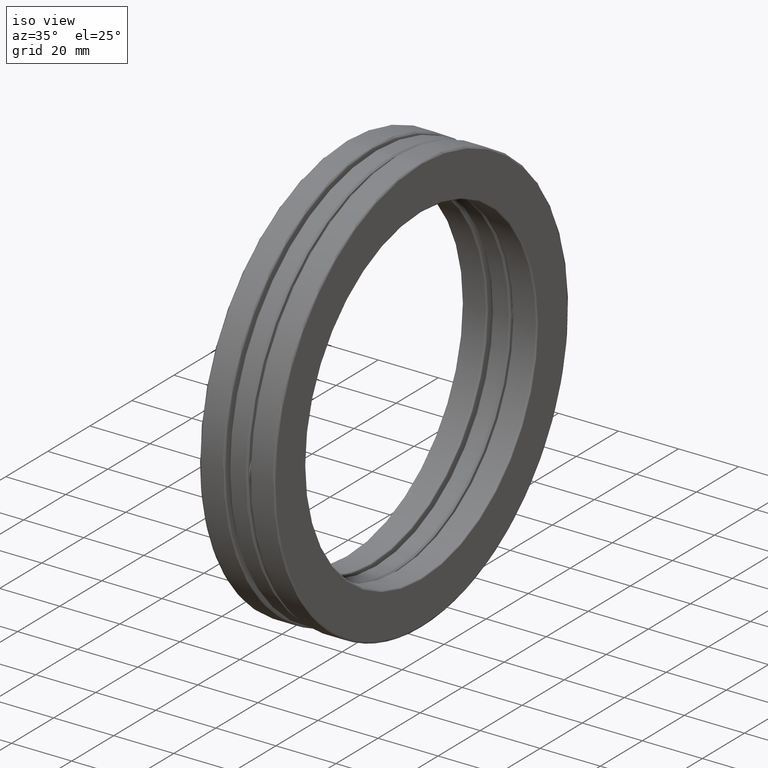
[diagram: clean part render]
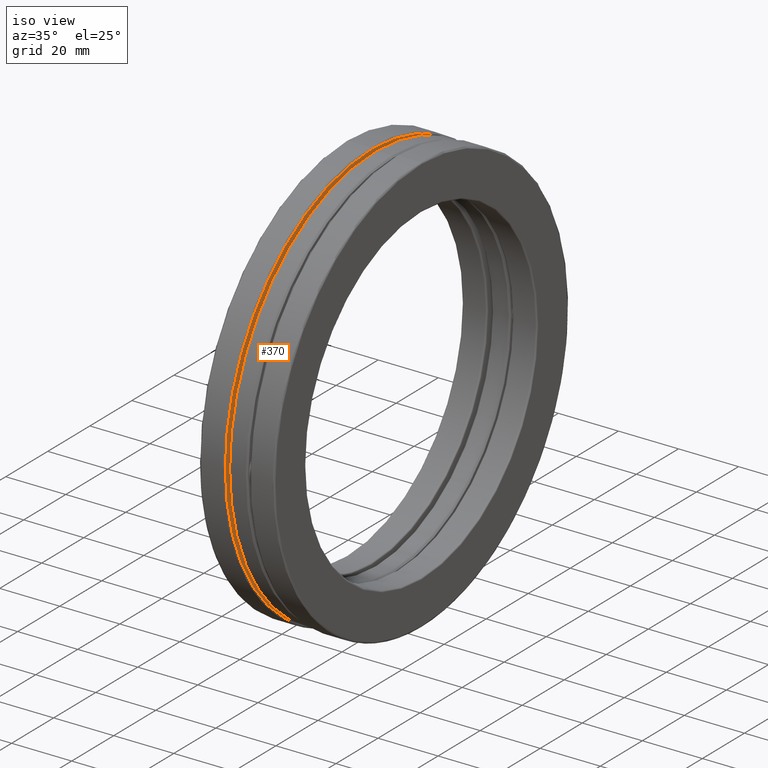
[diagram: same view with one face highlighted and labeled with its STEP entity id]
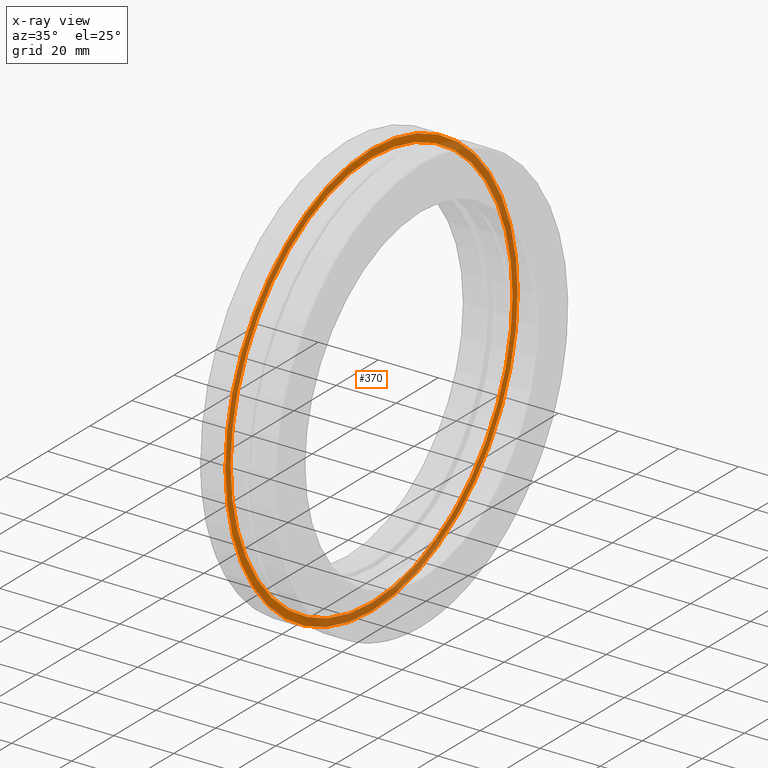
[diagram: x-ray of the same camera — body ghosted, the highlighted face saturated]
A machine part, iso view. The second image highlights one B-rep face of the part: STEP entity #370.
The next image is the same camera in x-ray: the body ghosted, the highlighted face saturated — about 31% of this face is hidden behind the body in this view.
In plain terms, the highlighted planar face has unit normal (1, 0, 0).
Its self-contained STEP definition (entity closure, byte-faithful):
#9 = FACE_BOUND ( 'NONE', #388, .T. ) ;
#11 = AXIS2_PLACEMENT_3D ( 'NONE', #387, #265, #450 ) ;
#58 = EDGE_CURVE ( 'NONE', #361, #361, #762, .T. ) ;
#66 = ORIENTED_EDGE ( 'NONE', *, *, #58, .T. ) ;
#115 = CIRCLE ( 'NONE', #767, 2.735999999999999300 ) ;
#206 = DIRECTION ( 'NONE',  ( -1.000000000000000000, -0.0000000000000000000, -0.0000000000000000000 ) ) ;
#223 = DIRECTION ( 'NONE',  ( -1.000000000000000000, -0.0000000000000000000, -0.0000000000000000000 ) ) ;
#265 = DIRECTION ( 'NONE',  ( 1.000000000000000000, 0.0000000000000000000, 0.0000000000000000000 ) ) ;
#312 = CARTESIAN_POINT ( 'NONE',  ( -0.1640032799999996700, 0.0000000000000000000, 2.638702027662630300 ) ) ;
#335 = DIRECTION ( 'NONE',  ( 0.0000000000000000000, 0.0000000000000000000, 1.000000000000000000 ) ) ;
#361 = VERTEX_POINT ( 'NONE', #312 ) ;
#370 = ADVANCED_FACE ( 'NONE', ( #9, #494 ), #389, .T. ) ;
#387 = CARTESIAN_POINT ( 'NONE',  ( -0.1640032799999996700, 0.0000000000000000000, 0.0000000000000000000 ) ) ;
#388 = EDGE_LOOP ( 'NONE', ( #66 ) ) ;
#389 = PLANE ( 'NONE',  #11 ) ;
#411 = CARTESIAN_POINT ( 'NONE',  ( -0.1640032799999996700, 0.0000000000000000000, 0.0000000000000000000 ) ) ;
#450 = DIRECTION ( 'NONE',  ( 0.0000000000000000000, 0.0000000000000000000, -1.000000000000000000 ) ) ;
#472 = DIRECTION ( 'NONE',  ( 0.0000000000000000000, 0.0000000000000000000, 1.000000000000000000 ) ) ;
#494 = FACE_OUTER_BOUND ( 'NONE', #715, .T. ) ;
#562 = VERTEX_POINT ( 'NONE', #619 ) ;
#619 = CARTESIAN_POINT ( 'NONE',  ( -0.1640032799999996700, 0.0000000000000000000, 2.735999999999999300 ) ) ;
#663 = CARTESIAN_POINT ( 'NONE',  ( -0.1640032799999996700, 0.0000000000000000000, 0.0000000000000000000 ) ) ;
#665 = EDGE_CURVE ( 'NONE', #562, #562, #115, .T. ) ;
#698 = AXIS2_PLACEMENT_3D ( 'NONE', #663, #206, #335 ) ;
#715 = EDGE_LOOP ( 'NONE', ( #737 ) ) ;
#737 = ORIENTED_EDGE ( 'NONE', *, *, #665, .F. ) ;
#762 = CIRCLE ( 'NONE', #698, 2.638702027662630300 ) ;
#767 = AXIS2_PLACEMENT_3D ( 'NONE', #411, #223, #472 ) ;